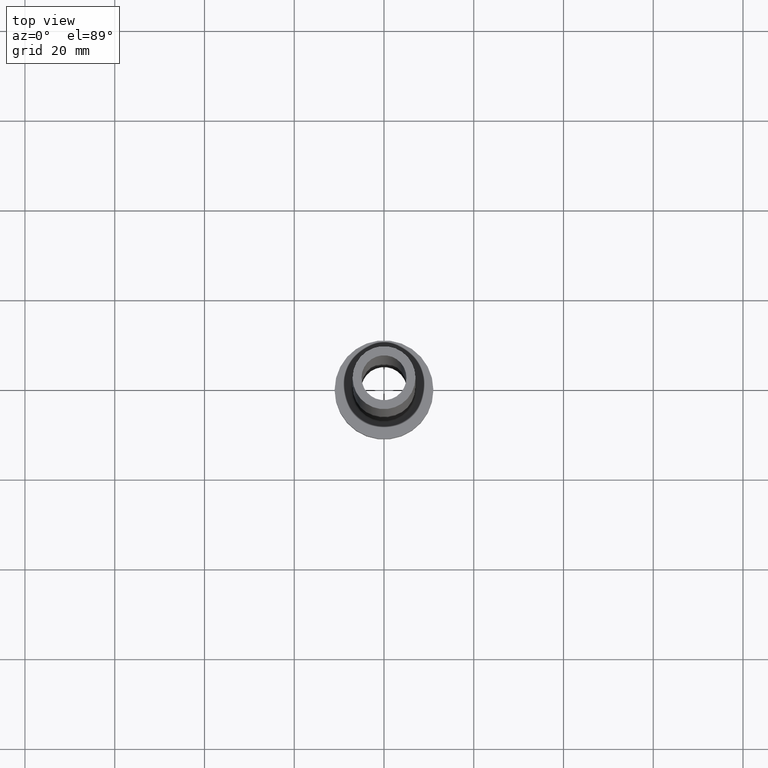
[diagram: clean part render]
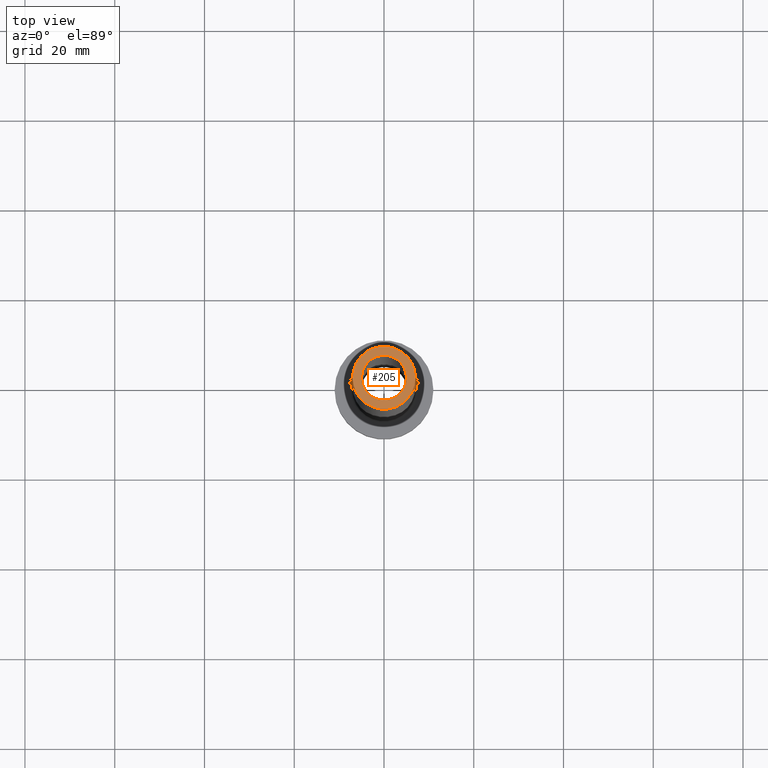
[diagram: same view with one face highlighted and labeled with its STEP entity id]
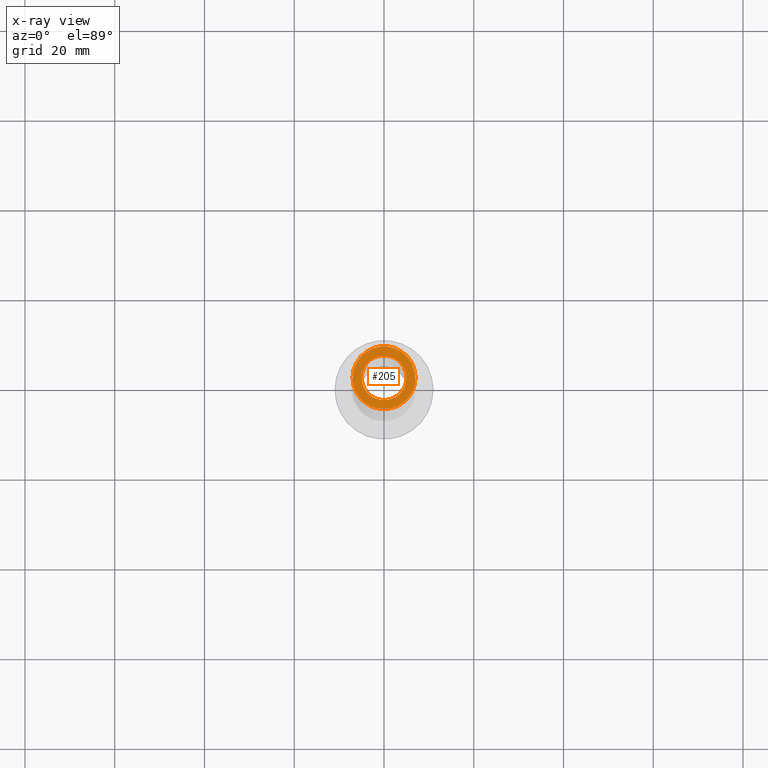
[diagram: x-ray of the same camera — body ghosted, the highlighted face saturated]
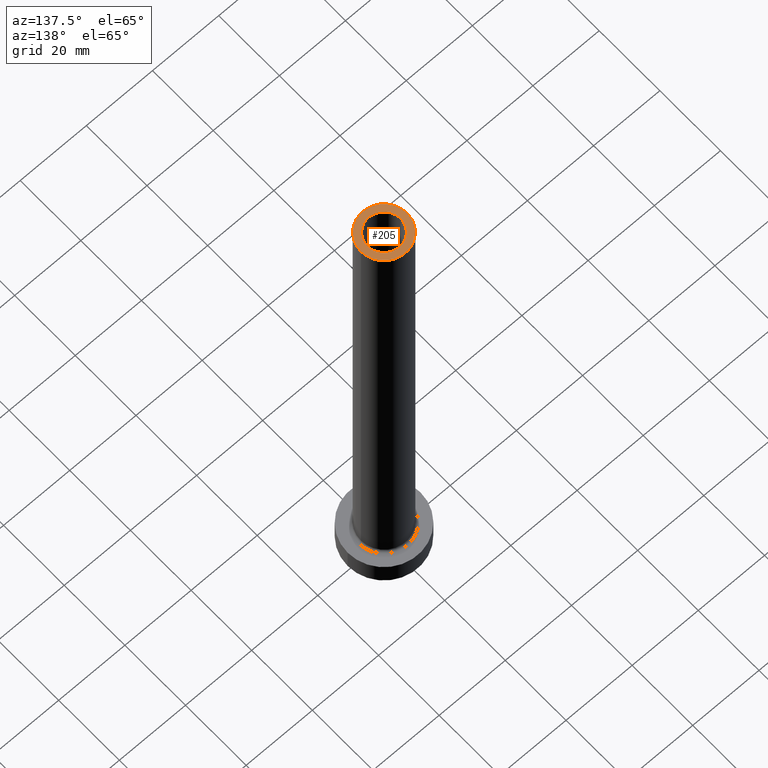
[diagram: same view with one face highlighted and labeled with its STEP entity id]
A machine part, top view. The second image highlights one B-rep face of the part: STEP entity #205.
The next image is the same camera in x-ray: the body ghosted, the highlighted face saturated — about 0% of this face is hidden behind the body in this view.
A second angle (auxiliary view) of the same face is appended — the face is thin or edge-on in the first view.
In plain terms, the highlighted planar face has unit normal (0, 0, 1).
Its self-contained STEP definition (entity closure, byte-faithful):
#1 = DIRECTION ( 'NONE',  ( 0.000000000000000000, 0.000000000000000000, 1.000000000000000000 ) ) ;
#4 = EDGE_CURVE ( 'NONE', #73, #159, #318, .T. ) ;
#6 = CARTESIAN_POINT ( 'NONE',  ( 0.000000000000000000, 0.000000000000000000, 160.0000000000000000 ) ) ;
#22 = DIRECTION ( 'NONE',  ( 1.000000000000000000, 0.000000000000000000, 0.000000000000000000 ) ) ;
#23 = EDGE_CURVE ( 'NONE', #168, #436, #105, .T. ) ;
#28 = ORIENTED_EDGE ( 'NONE', *, *, #328, .F. ) ;
#50 = DIRECTION ( 'NONE',  ( 0.000000000000000000, 0.000000000000000000, 1.000000000000000000 ) ) ;
#73 = VERTEX_POINT ( 'NONE', #247 ) ;
#87 = CARTESIAN_POINT ( 'NONE',  ( 0.000000000000000000, 0.000000000000000000, 160.0000000000000000 ) ) ;
#88 = DIRECTION ( 'NONE',  ( 0.000000000000000000, 0.000000000000000000, 1.000000000000000000 ) ) ;
#101 = AXIS2_PLACEMENT_3D ( 'NONE', #187, #124, #126 ) ;
#103 = AXIS2_PLACEMENT_3D ( 'NONE', #146, #50, #299 ) ;
#105 = CIRCLE ( 'NONE', #157, 7.000000000000000888 ) ;
#124 = DIRECTION ( 'NONE',  ( 0.000000000000000000, 0.000000000000000000, 1.000000000000000000 ) ) ;
#126 = DIRECTION ( 'NONE',  ( 1.000000000000000000, 0.000000000000000000, 0.000000000000000000 ) ) ;
#137 = DIRECTION ( 'NONE',  ( 1.000000000000000000, 0.000000000000000000, -0.000000000000000000 ) ) ;
#146 = CARTESIAN_POINT ( 'NONE',  ( 0.000000000000000000, 0.000000000000000000, 160.0000000000000000 ) ) ;
#157 = AXIS2_PLACEMENT_3D ( 'NONE', #87, #88, #234 ) ;
#159 = VERTEX_POINT ( 'NONE', #385 ) ;
#160 = CARTESIAN_POINT ( 'NONE',  ( -7.000000000000000888, 0.000000000000000000, 160.0000000000000000 ) ) ;
#168 = VERTEX_POINT ( 'NONE', #231 ) ;
#178 = ORIENTED_EDGE ( 'NONE', *, *, #4, .F. ) ;
#182 = PLANE ( 'NONE',  #276 ) ;
#187 = CARTESIAN_POINT ( 'NONE',  ( 0.000000000000000000, 0.000000000000000000, 160.0000000000000000 ) ) ;
#193 = EDGE_LOOP ( 'NONE', ( #308, #383 ) ) ;
#205 = ADVANCED_FACE ( 'NONE', ( #405, #363 ), #182, .T. ) ;
#231 = CARTESIAN_POINT ( 'NONE',  ( 7.000000000000000888, 8.572527594031474176E-16, 160.0000000000000000 ) ) ;
#234 = DIRECTION ( 'NONE',  ( 1.000000000000000000, 0.000000000000000000, 0.000000000000000000 ) ) ;
#235 = CARTESIAN_POINT ( 'NONE',  ( 0.000000000000000000, 0.000000000000000000, 160.0000000000000000 ) ) ;
#247 = CARTESIAN_POINT ( 'NONE',  ( 5.000000000000000000, 6.123233995736765296E-16, 160.0000000000000000 ) ) ;
#276 = AXIS2_PLACEMENT_3D ( 'NONE', #6, #1, #137 ) ;
#299 = DIRECTION ( 'NONE',  ( 1.000000000000000000, 0.000000000000000000, 0.000000000000000000 ) ) ;
#308 = ORIENTED_EDGE ( 'NONE', *, *, #378, .T. ) ;
#316 = EDGE_LOOP ( 'NONE', ( #28, #178 ) ) ;
#318 = CIRCLE ( 'NONE', #101, 5.000000000000000000 ) ;
#328 = EDGE_CURVE ( 'NONE', #159, #73, #409, .T. ) ;
#332 = CIRCLE ( 'NONE', #103, 7.000000000000000888 ) ;
#349 = DIRECTION ( 'NONE',  ( 0.000000000000000000, 0.000000000000000000, 1.000000000000000000 ) ) ;
#363 = FACE_OUTER_BOUND ( 'NONE', #193, .T. ) ;
#378 = EDGE_CURVE ( 'NONE', #436, #168, #332, .T. ) ;
#383 = ORIENTED_EDGE ( 'NONE', *, *, #23, .T. ) ;
#385 = CARTESIAN_POINT ( 'NONE',  ( -5.000000000000000000, 0.000000000000000000, 160.0000000000000000 ) ) ;
#405 = FACE_BOUND ( 'NONE', #316, .T. ) ;
#409 = CIRCLE ( 'NONE', #458, 5.000000000000000000 ) ;
#436 = VERTEX_POINT ( 'NONE', #160 ) ;
#458 = AXIS2_PLACEMENT_3D ( 'NONE', #235, #349, #22 ) ;